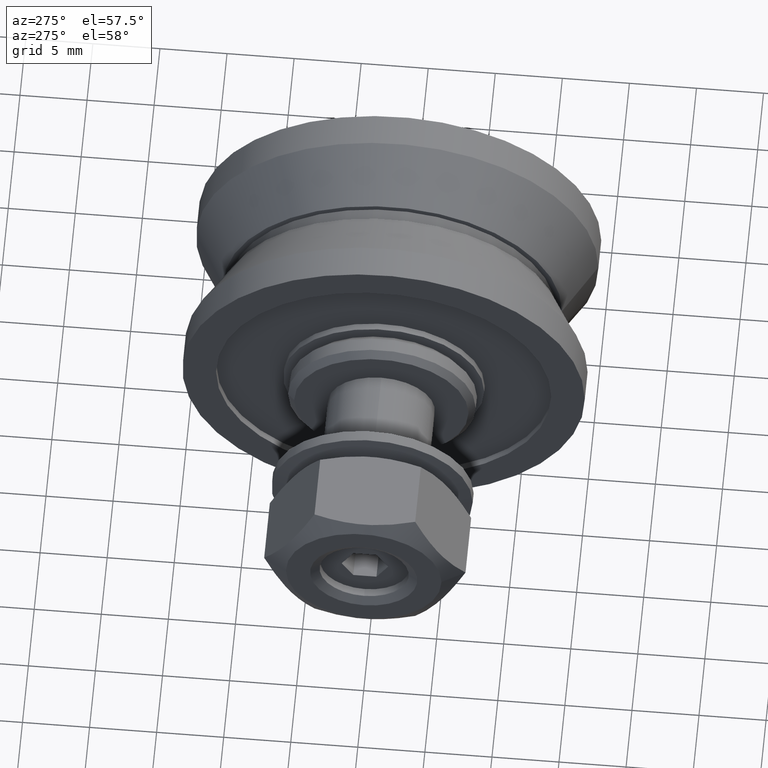
[diagram: clean part render]
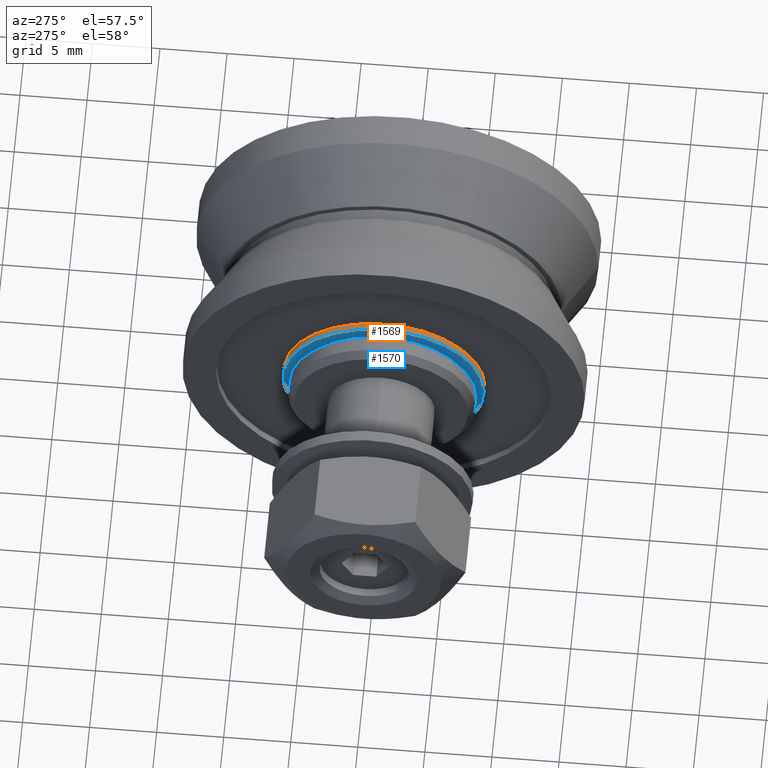
[diagram: same view with the hole feature highlighted: cylindrical wall and planar end face, labeled with their STEP entity ids]
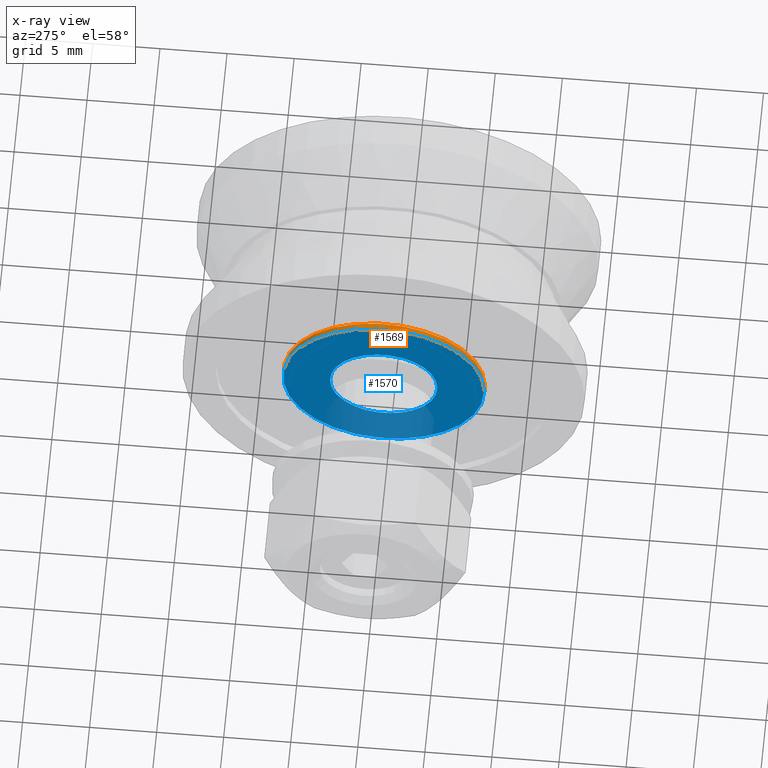
[diagram: x-ray of the same camera — body ghosted, the hole faces saturated]
A machine part, auxiliary view. The highlighted faces form one hole feature of diameter 15 mm: the cylindrical wall (entity #1569, orange) and its adjacent planar end face (entity #1570, blue) — they share a circular edge in the B-rep.
The next image is the same camera in x-ray (body ghosted, the hole faces saturated) — the bore reads through the body.
Wall:
#146=CYLINDRICAL_SURFACE('',#1855,7.5);
#223=FACE_OUTER_BOUND('',#336,.T.);
#336=EDGE_LOOP('',(#1291,#1292,#1293,#1294));
#450=LINE('',#2715,#568);
#568=VECTOR('',#2235,7.5);
#663=CIRCLE('',#1854,7.5);
#664=CIRCLE('',#1856,7.5);
#777=VERTEX_POINT('',#2710);
#778=VERTEX_POINT('',#2713);
#958=EDGE_CURVE('',#777,#777,#663,.T.);
#959=EDGE_CURVE('',#778,#778,#664,.T.);
#960=EDGE_CURVE('',#778,#777,#450,.T.);
#1291=ORIENTED_EDGE('',*,*,#959,.F.);
#1292=ORIENTED_EDGE('',*,*,#960,.T.);
#1293=ORIENTED_EDGE('',*,*,#958,.T.);
#1294=ORIENTED_EDGE('',*,*,#960,.F.);
#1569=ADVANCED_FACE('',(#223),#146,.T.);
#1854=AXIS2_PLACEMENT_3D('',#2711,#2229,#2230);
#1855=AXIS2_PLACEMENT_3D('',#2712,#2231,#2232);
#1856=AXIS2_PLACEMENT_3D('',#2714,#2233,#2234);
#2229=DIRECTION('center_axis',(1.,0.,0.));
#2230=DIRECTION('ref_axis',(0.,1.,0.));
#2231=DIRECTION('center_axis',(1.,0.,0.));
#2232=DIRECTION('ref_axis',(0.,1.,0.));
#2233=DIRECTION('center_axis',(1.,0.,0.));
#2234=DIRECTION('ref_axis',(0.,1.,0.));
#2235=DIRECTION('',(-1.,0.,0.));
#2710=CARTESIAN_POINT('',(6.49999999999998,-7.5,-9.18485099360515E-16));
#2711=CARTESIAN_POINT('Origin',(6.49999999999998,0.,0.));
#2712=CARTESIAN_POINT('Origin',(6.74999999999998,0.,0.));
#2713=CARTESIAN_POINT('',(6.99999999999998,-7.5,-9.18485099360515E-16));
#2714=CARTESIAN_POINT('Origin',(6.99999999999998,0.,0.));
#2715=CARTESIAN_POINT('',(6.74999999999998,-7.5,-9.18485099360515E-16));
End face:
#76=FACE_BOUND('',#338,.T.);
#116=PLANE('',#1857);
#224=FACE_OUTER_BOUND('',#337,.T.);
#337=EDGE_LOOP('',(#1295));
#338=EDGE_LOOP('',(#1296));
#664=CIRCLE('',#1856,7.5);
#665=CIRCLE('',#1858,4.);
#778=VERTEX_POINT('',#2713);
#779=VERTEX_POINT('',#2717);
#959=EDGE_CURVE('',#778,#778,#664,.T.);
#961=EDGE_CURVE('',#779,#779,#665,.T.);
#1295=ORIENTED_EDGE('',*,*,#959,.T.);
#1296=ORIENTED_EDGE('',*,*,#961,.F.);
#1570=ADVANCED_FACE('',(#224,#76),#116,.T.);
#1856=AXIS2_PLACEMENT_3D('',#2714,#2233,#2234);
#1857=AXIS2_PLACEMENT_3D('',#2716,#2236,#2237);
#1858=AXIS2_PLACEMENT_3D('',#2718,#2238,#2239);
#2233=DIRECTION('center_axis',(1.,0.,0.));
#2234=DIRECTION('ref_axis',(0.,1.,0.));
#2236=DIRECTION('center_axis',(1.,0.,0.));
#2237=DIRECTION('ref_axis',(0.,0.,-1.));
#2238=DIRECTION('center_axis',(1.,0.,0.));
#2239=DIRECTION('ref_axis',(0.,1.,0.));
#2713=CARTESIAN_POINT('',(6.99999999999998,-7.5,-9.18485099360515E-16));
#2714=CARTESIAN_POINT('Origin',(6.99999999999998,0.,0.));
#2716=CARTESIAN_POINT('Origin',(6.99999999999998,5.75,0.));
#2717=CARTESIAN_POINT('',(6.99999999999998,-4.,-4.89858719658941E-16));
#2718=CARTESIAN_POINT('Origin',(6.99999999999998,0.,0.));